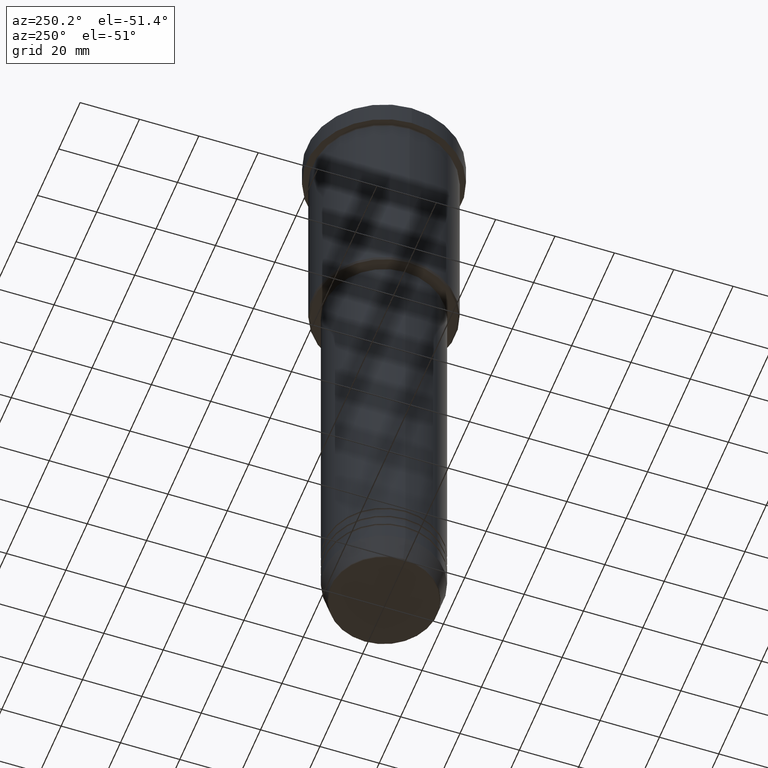
[diagram: clean part render]
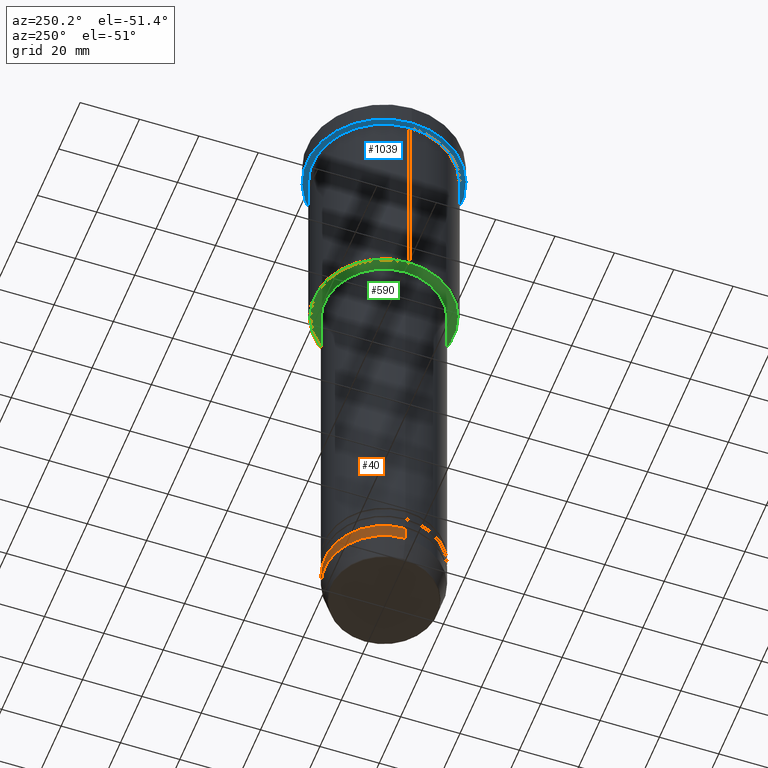
[diagram: same view with three faces highlighted in distinct colors, each labeled with its STEP entity id]
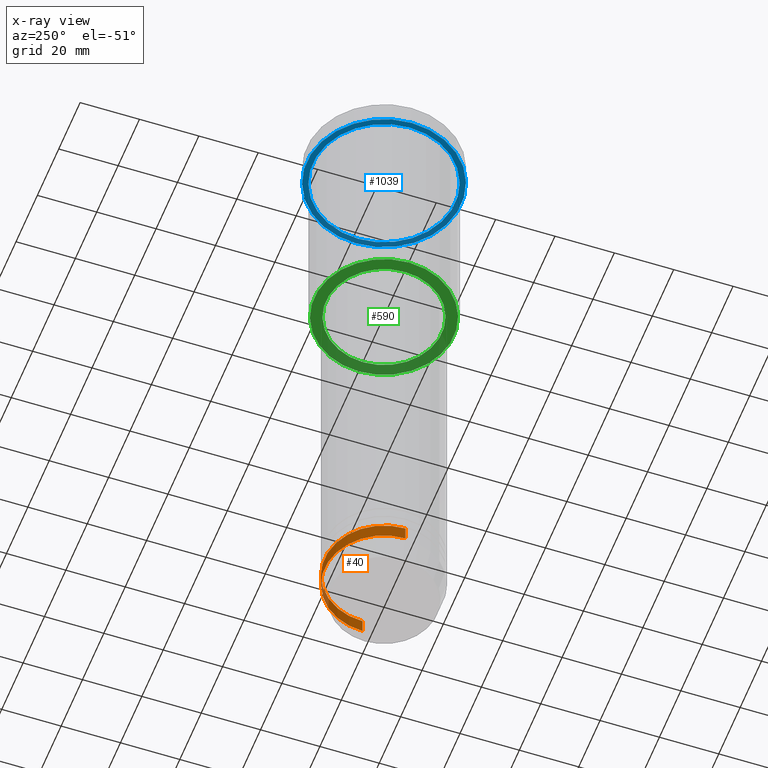
[diagram: x-ray of the same camera — body ghosted, the three highlighted faces saturated]
A machine part, auxiliary view with three faces highlighted in distinct colors.
The next image is the same camera in x-ray (body ghosted, the three faces saturated) — at least one of them is partly hidden behind the body in this view.
Their STEP definitions:

[orange] entity #40 — the highlighted cylindrical surface (partial cylindrical patch) has radius 20 mm, axis along (-0, -0, 1).
#13 = CIRCLE ( 'NONE', #682, 20.00000000000000000 ) ;
#18 = ORIENTED_EDGE ( 'NONE', *, *, #489, .T. ) ;
#36 = CARTESIAN_POINT ( 'NONE',  ( 20.00000000000000355, 0.000000000000000000, 0.000000000000000000 ) ) ;
#40 = ADVANCED_FACE ( 'NONE', ( #97 ), #832, .T. ) ;
#64 = CARTESIAN_POINT ( 'NONE',  ( -20.00000000000000000, 2.449293598294706513E-15, -207.0000000000000000 ) ) ;
#78 = LINE ( 'NONE', #452, #1061 ) ;
#81 = DIRECTION ( 'NONE',  ( -0.000000000000000000, -0.000000000000000000, 1.000000000000000000 ) ) ;
#97 = FACE_OUTER_BOUND ( 'NONE', #589, .T. ) ;
#181 = DIRECTION ( 'NONE',  ( -0.000000000000000000, -0.000000000000000000, 1.000000000000000000 ) ) ;
#184 = CARTESIAN_POINT ( 'NONE',  ( 20.00000000000000000, 0.000000000000000000, -207.0000000000000000 ) ) ;
#185 = EDGE_CURVE ( 'NONE', #939, #352, #13, .T. ) ;
#210 = EDGE_CURVE ( 'NONE', #1155, #939, #587, .T. ) ;
#228 = DIRECTION ( 'NONE',  ( 1.000000000000000000, 0.000000000000000000, 0.000000000000000000 ) ) ;
#296 = CIRCLE ( 'NONE', #417, 20.00000000000000355 ) ;
#306 = VERTEX_POINT ( 'NONE', #1068 ) ;
#321 = DIRECTION ( 'NONE',  ( -0.000000000000000000, -0.000000000000000000, 1.000000000000000000 ) ) ;
#352 = VERTEX_POINT ( 'NONE', #64 ) ;
#372 = DIRECTION ( 'NONE',  ( 1.000000000000000000, 0.000000000000000000, 0.000000000000000000 ) ) ;
#375 = EDGE_CURVE ( 'NONE', #306, #352, #78, .T. ) ;
#376 = CARTESIAN_POINT ( 'NONE',  ( 0.000000000000000000, 0.000000000000000000, 0.000000000000000000 ) ) ;
#417 = AXIS2_PLACEMENT_3D ( 'NONE', #712, #181, #372 ) ;
#452 = CARTESIAN_POINT ( 'NONE',  ( -20.00000000000000355, 2.449293598294706907E-15, 0.000000000000000000 ) ) ;
#489 = EDGE_CURVE ( 'NONE', #1155, #306, #296, .T. ) ;
#540 = CARTESIAN_POINT ( 'NONE',  ( 20.00000000000000355, 0.000000000000000000, -212.0000000000000000 ) ) ;
#587 = LINE ( 'NONE', #36, #704 ) ;
#589 = EDGE_LOOP ( 'NONE', ( #18, #1177, #808, #1111 ) ) ;
#662 = CARTESIAN_POINT ( 'NONE',  ( 0.000000000000000000, 0.000000000000000000, -207.0000000000000000 ) ) ;
#682 = AXIS2_PLACEMENT_3D ( 'NONE', #662, #321, #228 ) ;
#684 = AXIS2_PLACEMENT_3D ( 'NONE', #376, #81, #739 ) ;
#704 = VECTOR ( 'NONE', #1036, 1000.000000000000000 ) ;
#712 = CARTESIAN_POINT ( 'NONE',  ( 0.000000000000000000, 0.000000000000000000, -212.0000000000000000 ) ) ;
#739 = DIRECTION ( 'NONE',  ( 1.000000000000000000, 0.000000000000000000, 0.000000000000000000 ) ) ;
#808 = ORIENTED_EDGE ( 'NONE', *, *, #185, .F. ) ;
#832 = CYLINDRICAL_SURFACE ( 'NONE', #684, 20.00000000000000355 ) ;
#930 = DIRECTION ( 'NONE',  ( -0.000000000000000000, -0.000000000000000000, 1.000000000000000000 ) ) ;
#939 = VERTEX_POINT ( 'NONE', #184 ) ;
#1036 = DIRECTION ( 'NONE',  ( -0.000000000000000000, -0.000000000000000000, 1.000000000000000000 ) ) ;
#1061 = VECTOR ( 'NONE', #930, 1000.000000000000000 ) ;
#1068 = CARTESIAN_POINT ( 'NONE',  ( -20.00000000000000355, 2.449293598294706907E-15, -212.0000000000000000 ) ) ;
#1111 = ORIENTED_EDGE ( 'NONE', *, *, #210, .F. ) ;
#1155 = VERTEX_POINT ( 'NONE', #540 ) ;
#1177 = ORIENTED_EDGE ( 'NONE', *, *, #375, .T. ) ;

[blue] entity #1039 — the highlighted planar face has unit normal (0, 0, -1).
#4 = VERTEX_POINT ( 'NONE', #1182 ) ;
#20 = DIRECTION ( 'NONE',  ( -0.000000000000000000, -0.000000000000000000, 1.000000000000000000 ) ) ;
#43 = DIRECTION ( 'NONE',  ( 1.000000000000000000, 0.000000000000000000, 0.000000000000000000 ) ) ;
#77 = FACE_OUTER_BOUND ( 'NONE', #433, .T. ) ;
#79 = EDGE_CURVE ( 'NONE', #338, #719, #934, .T. ) ;
#94 = CARTESIAN_POINT ( 'NONE',  ( -26.00000000000000000, 3.184081677783118191E-15, -7.999999999999992895 ) ) ;
#107 = CARTESIAN_POINT ( 'NONE',  ( 0.000000000000000000, 0.000000000000000000, -7.999999999999992895 ) ) ;
#172 = PLANE ( 'NONE',  #215 ) ;
#215 = AXIS2_PLACEMENT_3D ( 'NONE', #696, #244, #691 ) ;
#244 = DIRECTION ( 'NONE',  ( 0.000000000000000000, 0.000000000000000000, -1.000000000000000000 ) ) ;
#253 = EDGE_CURVE ( 'NONE', #4, #1019, #414, .T. ) ;
#260 = CIRCLE ( 'NONE', #599, 24.00000000000000000 ) ;
#324 = DIRECTION ( 'NONE',  ( -0.000000000000000000, -0.000000000000000000, 1.000000000000000000 ) ) ;
#338 = VERTEX_POINT ( 'NONE', #614 ) ;
#390 = DIRECTION ( 'NONE',  ( 1.000000000000000000, 0.000000000000000000, 0.000000000000000000 ) ) ;
#401 = CARTESIAN_POINT ( 'NONE',  ( 0.000000000000000000, 0.000000000000000000, -7.999999999999992895 ) ) ;
#414 = CIRCLE ( 'NONE', #1038, 26.00000000000000000 ) ;
#433 = EDGE_LOOP ( 'NONE', ( #763, #448 ) ) ;
#448 = ORIENTED_EDGE ( 'NONE', *, *, #954, .F. ) ;
#472 = FACE_BOUND ( 'NONE', #902, .T. ) ;
#591 = DIRECTION ( 'NONE',  ( -0.000000000000000000, -0.000000000000000000, 1.000000000000000000 ) ) ;
#599 = AXIS2_PLACEMENT_3D ( 'NONE', #874, #324, #828 ) ;
#614 = CARTESIAN_POINT ( 'NONE',  ( 24.00000000000000000, 2.939152317953647894E-15, -7.999999999999992895 ) ) ;
#619 = EDGE_CURVE ( 'NONE', #719, #338, #260, .T. ) ;
#635 = AXIS2_PLACEMENT_3D ( 'NONE', #401, #591, #863 ) ;
#686 = CARTESIAN_POINT ( 'NONE',  ( 0.000000000000000000, 0.000000000000000000, -7.999999999999992895 ) ) ;
#691 = DIRECTION ( 'NONE',  ( -1.000000000000000000, 0.000000000000000000, -0.000000000000000000 ) ) ;
#696 = CARTESIAN_POINT ( 'NONE',  ( 0.000000000000000000, 26.00000000000000000, -7.999999999999992895 ) ) ;
#713 = ORIENTED_EDGE ( 'NONE', *, *, #619, .T. ) ;
#719 = VERTEX_POINT ( 'NONE', #1053 ) ;
#735 = AXIS2_PLACEMENT_3D ( 'NONE', #107, #20, #390 ) ;
#763 = ORIENTED_EDGE ( 'NONE', *, *, #253, .F. ) ;
#788 = CIRCLE ( 'NONE', #735, 26.00000000000000000 ) ;
#828 = DIRECTION ( 'NONE',  ( -1.000000000000000000, 0.000000000000000000, 0.000000000000000000 ) ) ;
#863 = DIRECTION ( 'NONE',  ( -1.000000000000000000, 0.000000000000000000, 0.000000000000000000 ) ) ;
#874 = CARTESIAN_POINT ( 'NONE',  ( 0.000000000000000000, 0.000000000000000000, -7.999999999999992895 ) ) ;
#902 = EDGE_LOOP ( 'NONE', ( #713, #1162 ) ) ;
#934 = CIRCLE ( 'NONE', #635, 24.00000000000000000 ) ;
#954 = EDGE_CURVE ( 'NONE', #1019, #4, #788, .T. ) ;
#1019 = VERTEX_POINT ( 'NONE', #94 ) ;
#1038 = AXIS2_PLACEMENT_3D ( 'NONE', #686, #1164, #43 ) ;
#1039 = ADVANCED_FACE ( 'NONE', ( #472, #77 ), #172, .T. ) ;
#1053 = CARTESIAN_POINT ( 'NONE',  ( -24.00000000000000000, 0.000000000000000000, -7.999999999999992895 ) ) ;
#1162 = ORIENTED_EDGE ( 'NONE', *, *, #79, .T. ) ;
#1164 = DIRECTION ( 'NONE',  ( -0.000000000000000000, -0.000000000000000000, 1.000000000000000000 ) ) ;
#1182 = CARTESIAN_POINT ( 'NONE',  ( 26.00000000000000000, 0.000000000000000000, -7.999999999999992895 ) ) ;

[green] entity #590 — the highlighted planar face has unit normal (0, 0, -1).
#11 = VERTEX_POINT ( 'NONE', #562 ) ;
#42 = AXIS2_PLACEMENT_3D ( 'NONE', #146, #52, #176 ) ;
#52 = DIRECTION ( 'NONE',  ( 0.000000000000000000, 0.000000000000000000, -1.000000000000000000 ) ) ;
#103 = DIRECTION ( 'NONE',  ( 1.000000000000000000, 0.000000000000000000, 0.000000000000000000 ) ) ;
#141 = VERTEX_POINT ( 'NONE', #1051 ) ;
#146 = CARTESIAN_POINT ( 'NONE',  ( 0.000000000000000000, 0.000000000000000000, -76.00000000000001421 ) ) ;
#176 = DIRECTION ( 'NONE',  ( -1.000000000000000000, 0.000000000000000000, 0.000000000000000000 ) ) ;
#188 = DIRECTION ( 'NONE',  ( -0.000000000000000000, -0.000000000000000000, 1.000000000000000000 ) ) ;
#237 = FACE_BOUND ( 'NONE', #791, .T. ) ;
#242 = AXIS2_PLACEMENT_3D ( 'NONE', #773, #1160, #709 ) ;
#398 = CIRCLE ( 'NONE', #868, 19.50000000000000355 ) ;
#426 = CIRCLE ( 'NONE', #42, 23.49999999999993250 ) ;
#441 = CIRCLE ( 'NONE', #544, 19.50000000000000355 ) ;
#447 = DIRECTION ( 'NONE',  ( -0.000000000000000000, -0.000000000000000000, 1.000000000000000000 ) ) ;
#533 = VERTEX_POINT ( 'NONE', #759 ) ;
#544 = AXIS2_PLACEMENT_3D ( 'NONE', #1055, #447, #959 ) ;
#562 = CARTESIAN_POINT ( 'NONE',  ( -19.50000000000000355, 2.388061258337339333E-15, -76.00000000000001421 ) ) ;
#585 = EDGE_CURVE ( 'NONE', #11, #533, #441, .T. ) ;
#590 = ADVANCED_FACE ( 'NONE', ( #998, #237 ), #1138, .T. ) ;
#611 = ORIENTED_EDGE ( 'NONE', *, *, #668, .T. ) ;
#621 = EDGE_CURVE ( 'NONE', #533, #11, #398, .T. ) ;
#634 = CARTESIAN_POINT ( 'NONE',  ( 0.000000000000000000, 0.000000000000000000, -76.00000000000001421 ) ) ;
#668 = EDGE_CURVE ( 'NONE', #141, #801, #1085, .T. ) ;
#709 = DIRECTION ( 'NONE',  ( -1.000000000000000000, 0.000000000000000000, -0.000000000000000000 ) ) ;
#759 = CARTESIAN_POINT ( 'NONE',  ( 19.50000000000000355, 0.000000000000000000, -76.00000000000001421 ) ) ;
#773 = CARTESIAN_POINT ( 'NONE',  ( 0.000000000000000000, 24.00000000000000000, -76.00000000000001421 ) ) ;
#781 = ORIENTED_EDGE ( 'NONE', *, *, #1150, .T. ) ;
#791 = EDGE_LOOP ( 'NONE', ( #1127, #924 ) ) ;
#801 = VERTEX_POINT ( 'NONE', #1117 ) ;
#868 = AXIS2_PLACEMENT_3D ( 'NONE', #928, #188, #103 ) ;
#896 = EDGE_LOOP ( 'NONE', ( #781, #611 ) ) ;
#924 = ORIENTED_EDGE ( 'NONE', *, *, #585, .T. ) ;
#928 = CARTESIAN_POINT ( 'NONE',  ( 0.000000000000000000, 0.000000000000000000, -76.00000000000001421 ) ) ;
#959 = DIRECTION ( 'NONE',  ( 1.000000000000000000, 0.000000000000000000, 0.000000000000000000 ) ) ;
#998 = FACE_OUTER_BOUND ( 'NONE', #896, .T. ) ;
#1051 = CARTESIAN_POINT ( 'NONE',  ( -23.49999999999993250, 2.908536147974959769E-15, -76.00000000000001421 ) ) ;
#1055 = CARTESIAN_POINT ( 'NONE',  ( 0.000000000000000000, 0.000000000000000000, -76.00000000000001421 ) ) ;
#1085 = CIRCLE ( 'NONE', #1153, 23.49999999999993250 ) ;
#1099 = DIRECTION ( 'NONE',  ( 0.000000000000000000, 0.000000000000000000, -1.000000000000000000 ) ) ;
#1107 = DIRECTION ( 'NONE',  ( -1.000000000000000000, 0.000000000000000000, 0.000000000000000000 ) ) ;
#1117 = CARTESIAN_POINT ( 'NONE',  ( 23.49999999999993250, 0.000000000000000000, -76.00000000000001421 ) ) ;
#1127 = ORIENTED_EDGE ( 'NONE', *, *, #621, .T. ) ;
#1138 = PLANE ( 'NONE',  #242 ) ;
#1150 = EDGE_CURVE ( 'NONE', #801, #141, #426, .T. ) ;
#1153 = AXIS2_PLACEMENT_3D ( 'NONE', #634, #1099, #1107 ) ;
#1160 = DIRECTION ( 'NONE',  ( 0.000000000000000000, 0.000000000000000000, -1.000000000000000000 ) ) ;